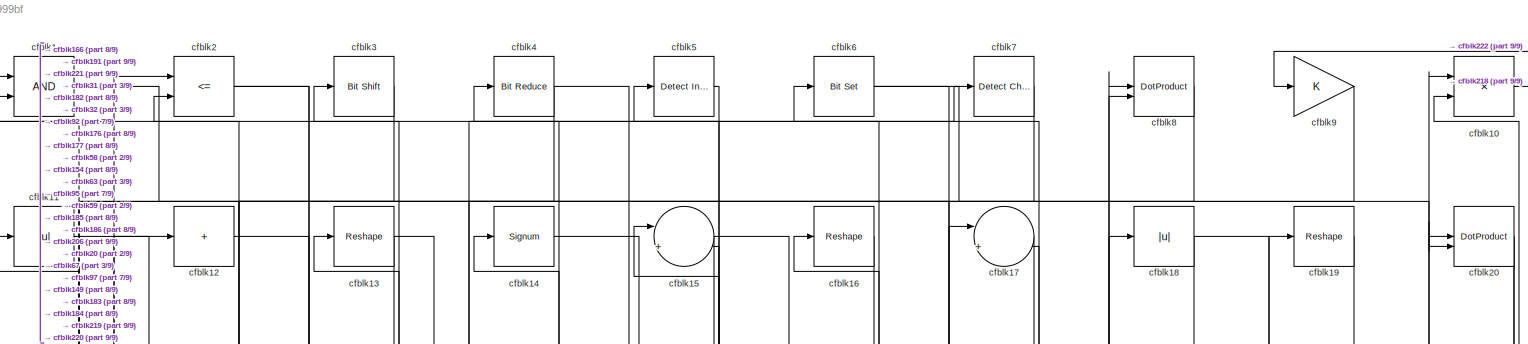
[diagram: root canvas - part 1/9, full width, top band]
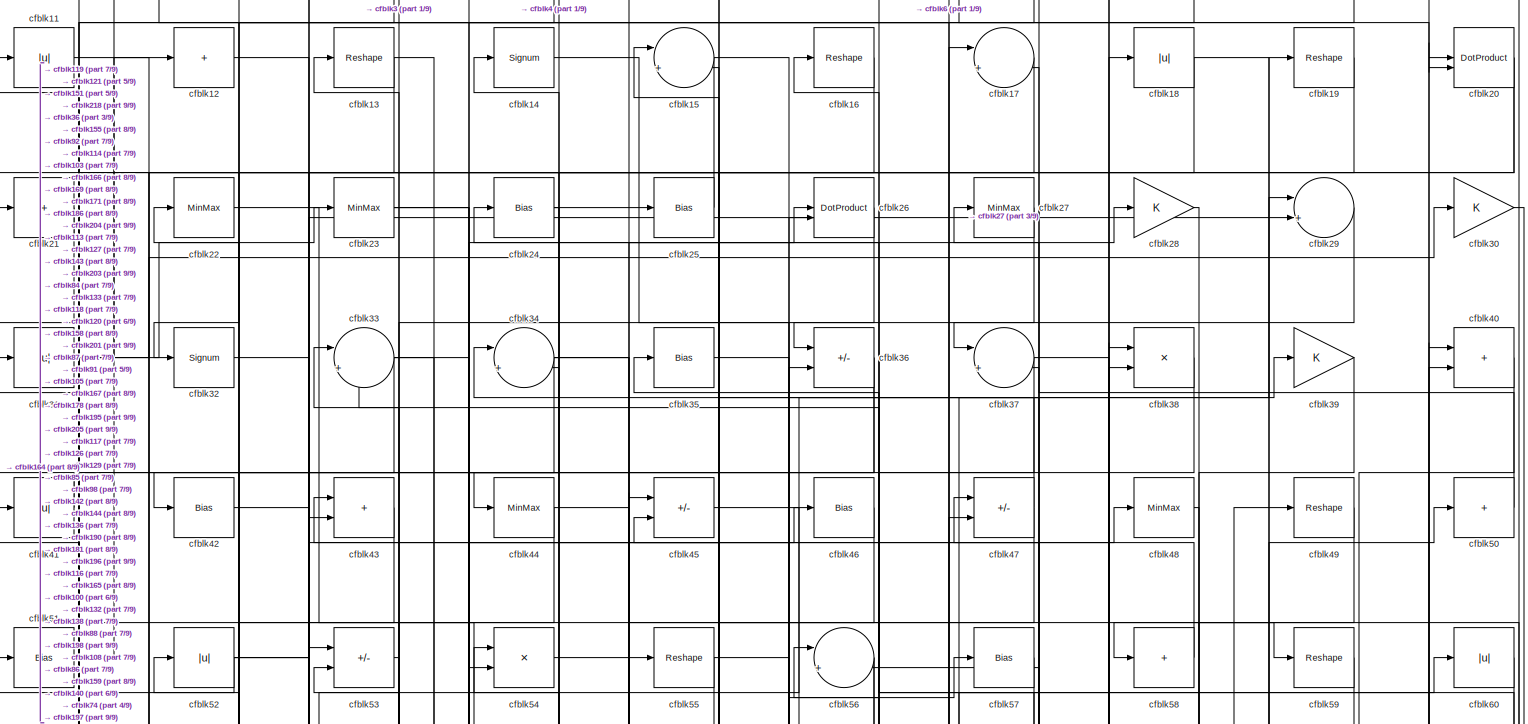
[diagram: root canvas - part 2/9, full width, top band]
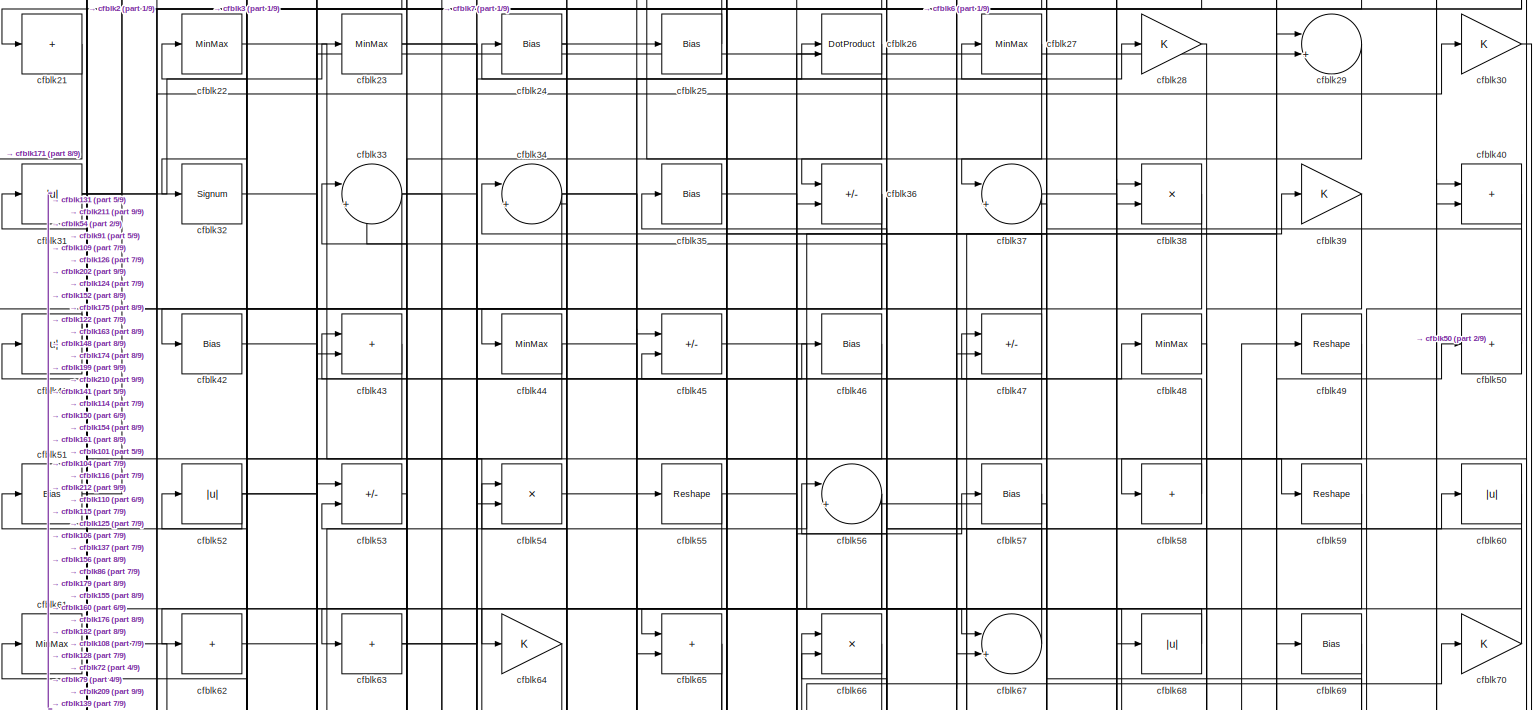
[diagram: root canvas - part 3/9, full width, top band]
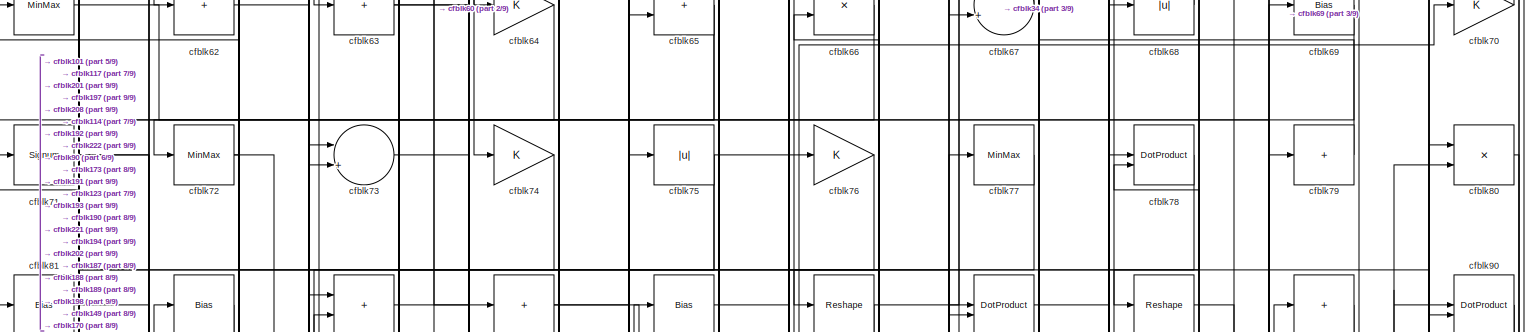
[diagram: root canvas - part 4/9, full width, top band]
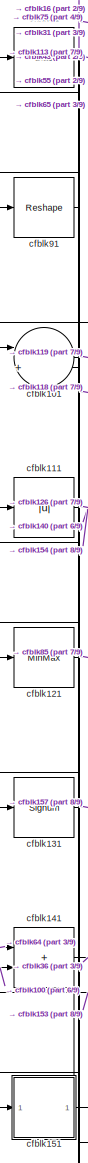
[diagram: root canvas - part 5/9, middle left region]
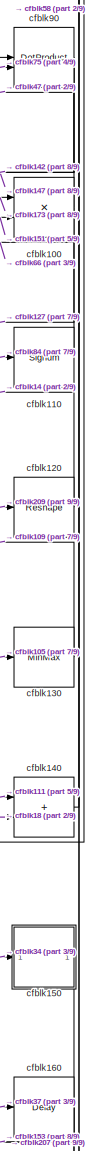
[diagram: root canvas - part 6/9, middle right region]
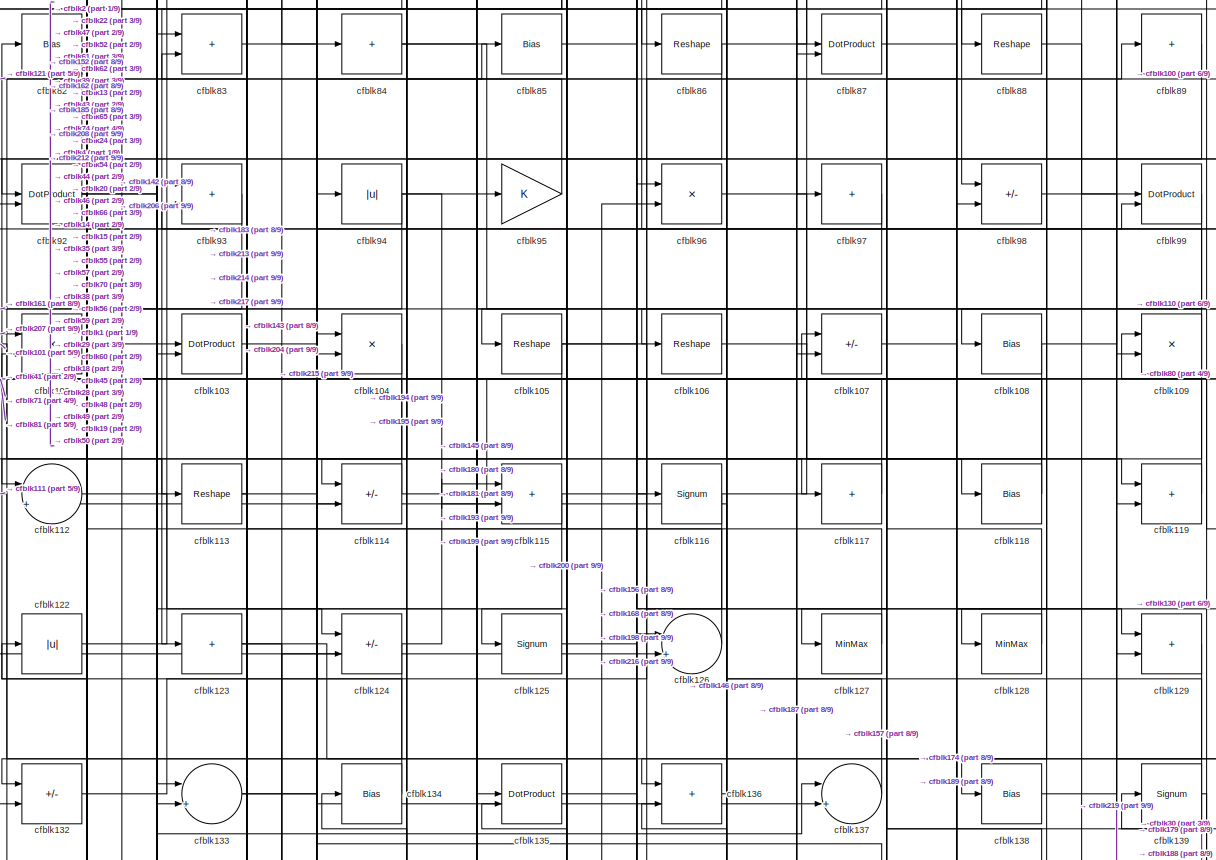
[diagram: root canvas - part 7/9, full width, middle band]
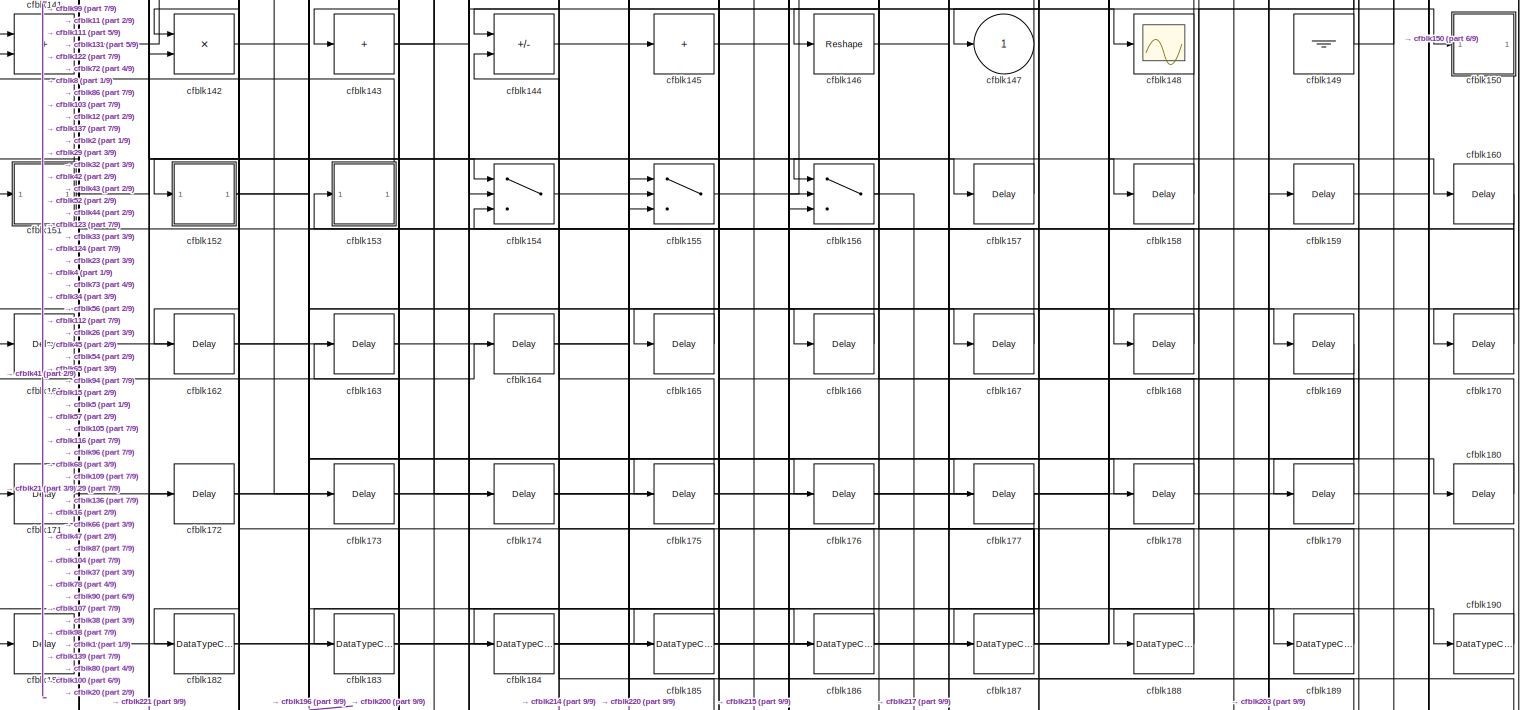
[diagram: root canvas - part 8/9, full width, bottom band]
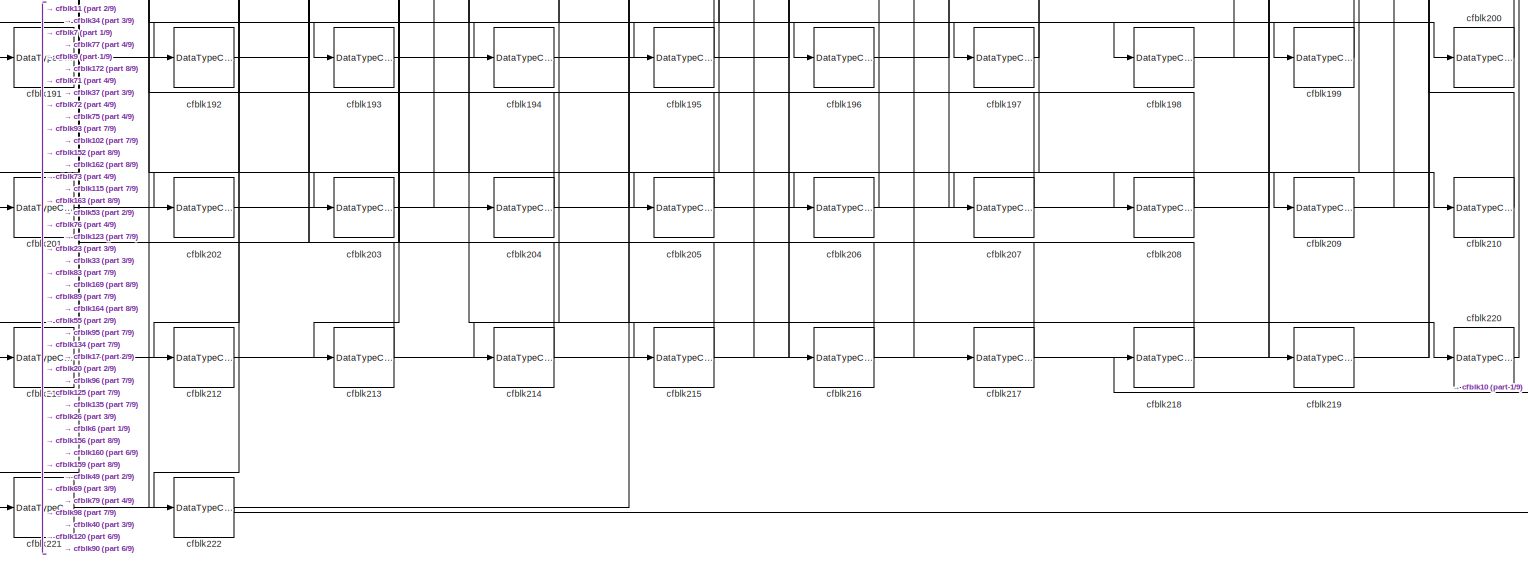
[diagram: root canvas - part 9/9, full width, bottom band]
MODEL slx_f61a17f999bf
KIND model
CONFIG AbsTol = auto
CONFIG EnableMultiTasking = off
CONFIG FixedStep = auto
CONFIG MaxStep = auto
CONFIG MinStep = auto
CONFIG RelTol = 1e-3
CONFIG SampleTimeConstraint = Unconstrained
CONFIG SolverName = VariableStepAuto
CONFIG StartTime = 0.0
CONFIG StopTime = 10.0
BLOCK [Logic] cfblk1
  AllPortsSameDT = off
  OutDataTypeStr = boolean
BLOCK [Product] cfblk10
  Inputs = */
  RndMeth = Zero
  SaturateOnIntegerOverflow = on
BLOCK [Product] cfblk100
  Inputs = */
  RndMeth = Zero
  SaturateOnIntegerOverflow = on
BLOCK [Sum] cfblk101
  Inputs = |++
BLOCK [Product] cfblk102
  Inputs = */
  RndMeth = Zero
  SaturateOnIntegerOverflow = on
BLOCK [DotProduct] cfblk103
  OutDataTypeStr = Inherit: Inherit via internal rule
BLOCK [Product] cfblk104
  Inputs = */
  RndMeth = Zero
  SaturateOnIntegerOverflow = on
BLOCK [Reshape] cfblk105
BLOCK [Reshape] cfblk106
BLOCK [Sum] cfblk107
  IconShape = rectangular
  Inputs = +-
BLOCK [Bias] cfblk108
  Bias = 0.0
  SaturateOnIntegerOverflow = off
BLOCK [Product] cfblk109
  Inputs = */
  RndMeth = Zero
  SaturateOnIntegerOverflow = on
BLOCK [Abs] cfblk11
  SaturateOnIntegerOverflow = off
BLOCK [Signum] cfblk110
BLOCK [Abs] cfblk111
  SaturateOnIntegerOverflow = off
BLOCK [Sum] cfblk112
  Inputs = |++
BLOCK [Reshape] cfblk113
BLOCK [Sum] cfblk114
  IconShape = rectangular
  Inputs = +-
BLOCK [Sum] cfblk115
  IconShape = rectangular
BLOCK [Signum] cfblk116
BLOCK [Sum] cfblk117
  IconShape = rectangular
  Inputs = +
BLOCK [Bias] cfblk118
  Bias = 0.0
  SaturateOnIntegerOverflow = off
BLOCK [Sum] cfblk119
  IconShape = rectangular
BLOCK [Sum] cfblk12
  IconShape = rectangular
  Inputs = +
BLOCK [Reshape] cfblk120
BLOCK [MinMax] cfblk121
BLOCK [Abs] cfblk122
  SaturateOnIntegerOverflow = off
BLOCK [Sum] cfblk123
  IconShape = rectangular
  Inputs = +
BLOCK [Sum] cfblk124
  IconShape = rectangular
  Inputs = +-
BLOCK [Signum] cfblk125
BLOCK [Sum] cfblk126
  Inputs = |++
BLOCK [MinMax] cfblk127
BLOCK [MinMax] cfblk128
BLOCK [Sum] cfblk129
  IconShape = rectangular
BLOCK [Reshape] cfblk13
BLOCK [MinMax] cfblk130
BLOCK [Signum] cfblk131
BLOCK [Sum] cfblk132
  IconShape = rectangular
  Inputs = +-
BLOCK [Sum] cfblk133
  Inputs = |++
BLOCK [Bias] cfblk134
  Bias = 0.0
  SaturateOnIntegerOverflow = off
BLOCK [DotProduct] cfblk135
  OutDataTypeStr = Inherit: Inherit via internal rule
BLOCK [Sum] cfblk136
  IconShape = rectangular
BLOCK [Sum] cfblk137
  Inputs = |++
BLOCK [Bias] cfblk138
  Bias = 0.0
  SaturateOnIntegerOverflow = off
BLOCK [Signum] cfblk139
BLOCK [Signum] cfblk14
BLOCK [Sum] cfblk140
  IconShape = rectangular
BLOCK [Sum] cfblk141
  IconShape = rectangular
BLOCK [Product] cfblk142
  Inputs = */
  RndMeth = Zero
  SaturateOnIntegerOverflow = on
BLOCK [Sum] cfblk143
  IconShape = rectangular
  Inputs = +
BLOCK [Sum] cfblk144
  IconShape = rectangular
  Inputs = +-
BLOCK [Sum] cfblk145
  IconShape = rectangular
  Inputs = +
BLOCK [Reshape] cfblk146
BLOCK [Outport] cfblk147
  VectorParamsAs1DForOutWhenUnconnected = off
BLOCK [Scope] cfblk148
  Floating = off
  NumInputPorts = 1
  ScopeSpecificationString = Simulink.scopes.TimeScopeBlockCfg('CurrentConfiguration', extmgr.ConfigurationSet(extmgr.Configuration('Core','General UI',true),extmgr.Configuration('Core','Source UI',true),extmgr.Configuration('Sources','WiredSimulink',true,'DataLoggingVariableName','ScopeData2','DataLoggingSaveFormat','Array','DataLoggingLimitDataPoints',true,'DataLoggingDecimation','1'),extmgr.Configuration('Visuals','Time Do...<+868ch>
BLOCK [Ground] cfblk149
BLOCK [Sum] cfblk15
  Inputs = |++
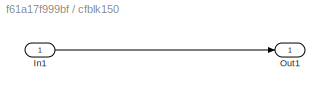
BLOCK [SubSystem] cfblk150
  LibrarySourceBlock = hdlsllib/Ports &\nSubsystems/Subsystem
BLOCK [Inport] cfblk150/In1
BLOCK [Outport] cfblk150/Out1
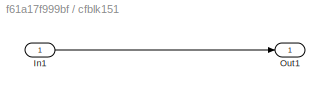
BLOCK [SubSystem] cfblk151
  LibrarySourceBlock = hdlsllib/Ports &\nSubsystems/Subsystem
BLOCK [Inport] cfblk151/In1
BLOCK [Outport] cfblk151/Out1
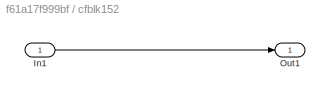
BLOCK [SubSystem] cfblk152
  LibrarySourceBlock = hdlsllib/Ports &\nSubsystems/Subsystem
BLOCK [Inport] cfblk152/In1
BLOCK [Outport] cfblk152/Out1
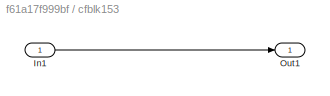
BLOCK [SubSystem] cfblk153
  LibrarySourceBlock = hdlsllib/Ports &\nSubsystems/Subsystem
BLOCK [Inport] cfblk153/In1
BLOCK [Outport] cfblk153/Out1
BLOCK [Switch] cfblk154
  InputSameDT = off
  SaturateOnIntegerOverflow = off
BLOCK [Switch] cfblk155
  InputSameDT = off
  SaturateOnIntegerOverflow = off
BLOCK [Switch] cfblk156
  InputSameDT = off
  SaturateOnIntegerOverflow = off
BLOCK [Delay] cfblk157
  InputPortMap = u0
  SampleTime = 1
BLOCK [Delay] cfblk158
  InputPortMap = u0
  SampleTime = 1
BLOCK [Delay] cfblk159
  InputPortMap = u0
  SampleTime = 1
BLOCK [Reshape] cfblk16
BLOCK [Delay] cfblk160
  InputPortMap = u0
  SampleTime = 1
BLOCK [Delay] cfblk161
  InputPortMap = u0
  SampleTime = 1
BLOCK [Delay] cfblk162
  InputPortMap = u0
  SampleTime = 1
BLOCK [Delay] cfblk163
  InputPortMap = u0
  SampleTime = 1
BLOCK [Delay] cfblk164
  InputPortMap = u0
  SampleTime = 1
BLOCK [Delay] cfblk165
  InputPortMap = u0
  SampleTime = 1
BLOCK [Delay] cfblk166
  InputPortMap = u0
  SampleTime = 1
BLOCK [Delay] cfblk167
  InputPortMap = u0
  SampleTime = 1
BLOCK [Delay] cfblk168
  InputPortMap = u0
  SampleTime = 1
BLOCK [Delay] cfblk169
  InputPortMap = u0
  SampleTime = 1
BLOCK [Sum] cfblk17
  Inputs = |++
BLOCK [Delay] cfblk170
  InputPortMap = u0
  SampleTime = 1
BLOCK [Delay] cfblk171
  InputPortMap = u0
  SampleTime = 1
BLOCK [Delay] cfblk172
  InputPortMap = u0
  SampleTime = 1
BLOCK [Delay] cfblk173
  InputPortMap = u0
  SampleTime = 1
BLOCK [Delay] cfblk174
  InputPortMap = u0
  SampleTime = 1
BLOCK [Delay] cfblk175
  InputPortMap = u0
  SampleTime = 1
BLOCK [Delay] cfblk176
  InputPortMap = u0
  SampleTime = 1
BLOCK [Delay] cfblk177
  InputPortMap = u0
  SampleTime = 1
BLOCK [Delay] cfblk178
  InputPortMap = u0
  SampleTime = 1
BLOCK [Delay] cfblk179
  InputPortMap = u0
  SampleTime = 1
BLOCK [Abs] cfblk18
  SaturateOnIntegerOverflow = off
BLOCK [Delay] cfblk180
  InputPortMap = u0
  SampleTime = 1
BLOCK [Delay] cfblk181
  InputPortMap = u0
  SampleTime = 1
BLOCK [DataTypeConversion] cfblk182
  OutDataTypeStr = uint8
  RndMeth = Floor
  SaturateOnIntegerOverflow = off
BLOCK [DataTypeConversion] cfblk183
  OutDataTypeStr = uint8
  RndMeth = Floor
  SaturateOnIntegerOverflow = off
BLOCK [DataTypeConversion] cfblk184
  OutDataTypeStr = uint8
  RndMeth = Floor
  SaturateOnIntegerOverflow = off
BLOCK [DataTypeConversion] cfblk185
  OutDataTypeStr = uint8
  RndMeth = Floor
  SaturateOnIntegerOverflow = off
BLOCK [DataTypeConversion] cfblk186
  OutDataTypeStr = uint8
  RndMeth = Floor
  SaturateOnIntegerOverflow = off
BLOCK [DataTypeConversion] cfblk187
  RndMeth = Floor
  SaturateOnIntegerOverflow = off
BLOCK [DataTypeConversion] cfblk188
  OutDataTypeStr = uint8
  RndMeth = Floor
  SaturateOnIntegerOverflow = off
BLOCK [DataTypeConversion] cfblk189
  OutDataTypeStr = uint8
  RndMeth = Floor
  SaturateOnIntegerOverflow = off
BLOCK [Reshape] cfblk19
BLOCK [DataTypeConversion] cfblk190
  OutDataTypeStr = uint8
  RndMeth = Floor
  SaturateOnIntegerOverflow = off
BLOCK [DataTypeConversion] cfblk191
  OutDataTypeStr = uint8
  RndMeth = Floor
  SaturateOnIntegerOverflow = off
BLOCK [DataTypeConversion] cfblk192
  OutDataTypeStr = uint8
  RndMeth = Floor
  SaturateOnIntegerOverflow = off
BLOCK [DataTypeConversion] cfblk193
  OutDataTypeStr = uint8
  RndMeth = Floor
  SaturateOnIntegerOverflow = off
BLOCK [DataTypeConversion] cfblk194
  OutDataTypeStr = uint8
  RndMeth = Floor
  SaturateOnIntegerOverflow = off
BLOCK [DataTypeConversion] cfblk195
  OutDataTypeStr = uint8
  RndMeth = Floor
  SaturateOnIntegerOverflow = off
BLOCK [DataTypeConversion] cfblk196
  OutDataTypeStr = uint8
  RndMeth = Floor
  SaturateOnIntegerOverflow = off
BLOCK [DataTypeConversion] cfblk197
  OutDataTypeStr = uint8
  RndMeth = Floor
  SaturateOnIntegerOverflow = off
BLOCK [DataTypeConversion] cfblk198
  RndMeth = Floor
  SaturateOnIntegerOverflow = off
BLOCK [DataTypeConversion] cfblk199
  OutDataTypeStr = uint8
  RndMeth = Floor
  SaturateOnIntegerOverflow = off
BLOCK [RelationalOperator] cfblk2
  InputSameDT = off
  Operator = <=
  OutDataTypeStr = boolean
BLOCK [DotProduct] cfblk20
  OutDataTypeStr = Inherit: Inherit via internal rule
BLOCK [DataTypeConversion] cfblk200
  OutDataTypeStr = uint8
  RndMeth = Floor
  SaturateOnIntegerOverflow = off
BLOCK [DataTypeConversion] cfblk201
  OutDataTypeStr = uint8
  RndMeth = Floor
  SaturateOnIntegerOverflow = off
BLOCK [DataTypeConversion] cfblk202
  OutDataTypeStr = uint8
  RndMeth = Floor
  SaturateOnIntegerOverflow = off
BLOCK [DataTypeConversion] cfblk203
  OutDataTypeStr = uint8
  RndMeth = Floor
  SaturateOnIntegerOverflow = off
BLOCK [DataTypeConversion] cfblk204
  OutDataTypeStr = uint8
  RndMeth = Floor
  SaturateOnIntegerOverflow = off
BLOCK [DataTypeConversion] cfblk205
  OutDataTypeStr = uint8
  RndMeth = Floor
  SaturateOnIntegerOverflow = off
BLOCK [DataTypeConversion] cfblk206
  OutDataTypeStr = uint8
  RndMeth = Floor
  SaturateOnIntegerOverflow = off
BLOCK [DataTypeConversion] cfblk207
  OutDataTypeStr = uint8
  RndMeth = Floor
  SaturateOnIntegerOverflow = off
BLOCK [DataTypeConversion] cfblk208
  OutDataTypeStr = uint8
  RndMeth = Floor
  SaturateOnIntegerOverflow = off
BLOCK [DataTypeConversion] cfblk209
  RndMeth = Floor
  SaturateOnIntegerOverflow = off
BLOCK [Sum] cfblk21
  IconShape = rectangular
  Inputs = +
BLOCK [DataTypeConversion] cfblk210
  OutDataTypeStr = uint8
  RndMeth = Floor
  SaturateOnIntegerOverflow = off
BLOCK [DataTypeConversion] cfblk211
  OutDataTypeStr = uint8
  RndMeth = Floor
  SaturateOnIntegerOverflow = off
BLOCK [DataTypeConversion] cfblk212
  RndMeth = Floor
  SaturateOnIntegerOverflow = off
BLOCK [DataTypeConversion] cfblk213
  OutDataTypeStr = uint8
  RndMeth = Floor
  SaturateOnIntegerOverflow = off
BLOCK [DataTypeConversion] cfblk214
  OutDataTypeStr = uint8
  RndMeth = Floor
  SaturateOnIntegerOverflow = off
BLOCK [DataTypeConversion] cfblk215
  RndMeth = Floor
  SaturateOnIntegerOverflow = off
BLOCK [DataTypeConversion] cfblk216
  OutDataTypeStr = uint8
  RndMeth = Floor
  SaturateOnIntegerOverflow = off
BLOCK [DataTypeConversion] cfblk217
  OutDataTypeStr = uint8
  RndMeth = Floor
  SaturateOnIntegerOverflow = off
BLOCK [DataTypeConversion] cfblk218
  OutDataTypeStr = uint8
  RndMeth = Floor
  SaturateOnIntegerOverflow = off
BLOCK [DataTypeConversion] cfblk219
  OutDataTypeStr = uint8
  RndMeth = Floor
  SaturateOnIntegerOverflow = off
BLOCK [MinMax] cfblk22
BLOCK [DataTypeConversion] cfblk220
  OutDataTypeStr = uint8
  RndMeth = Floor
  SaturateOnIntegerOverflow = off
BLOCK [DataTypeConversion] cfblk221
  RndMeth = Floor
  SaturateOnIntegerOverflow = off
BLOCK [DataTypeConversion] cfblk222
  OutDataTypeStr = uint8
  RndMeth = Floor
  SaturateOnIntegerOverflow = off
BLOCK [MinMax] cfblk23
BLOCK [Bias] cfblk24
  Bias = 0.0
  SaturateOnIntegerOverflow = off
BLOCK [Bias] cfblk25
  Bias = 0.0
  SaturateOnIntegerOverflow = off
BLOCK [DotProduct] cfblk26
  OutDataTypeStr = Inherit: Inherit via internal rule
BLOCK [MinMax] cfblk27
BLOCK [Gain] cfblk28
BLOCK [Sum] cfblk29
  Inputs = |++
BLOCK [Reference] cfblk3  REF=hdlsllib/Logic and Bit
Operations/Bit Shift
  SourceBlock = hdlsllib/Logic and Bit\nOperations/Bit Shift
  SourceType = Bit Shift
BLOCK [Gain] cfblk30
BLOCK [Abs] cfblk31
  SaturateOnIntegerOverflow = off
BLOCK [Signum] cfblk32
BLOCK [Sum] cfblk33
  Inputs = |++
BLOCK [Sum] cfblk34
  Inputs = |++
BLOCK [Bias] cfblk35
  Bias = 0.0
  SaturateOnIntegerOverflow = off
BLOCK [Sum] cfblk36
  IconShape = rectangular
  Inputs = +-
BLOCK [Sum] cfblk37
  Inputs = |++
BLOCK [Product] cfblk38
  Inputs = */
  RndMeth = Zero
  SaturateOnIntegerOverflow = on
BLOCK [Gain] cfblk39
BLOCK [Reference] cfblk4  REF=hdlsllib/Logic and Bit
Operations/Bit Reduce
  SourceBlock = hdlsllib/Logic and Bit\nOperations/Bit Reduce
  SourceType = Bit Reduce
BLOCK [Sum] cfblk40
  IconShape = rectangular
BLOCK [Abs] cfblk41
  SaturateOnIntegerOverflow = off
BLOCK [Bias] cfblk42
  Bias = 0.0
  SaturateOnIntegerOverflow = off
BLOCK [Sum] cfblk43
  IconShape = rectangular
BLOCK [MinMax] cfblk44
BLOCK [Sum] cfblk45
  IconShape = rectangular
  Inputs = +-
BLOCK [Bias] cfblk46
  Bias = 0.0
  SaturateOnIntegerOverflow = off
BLOCK [Sum] cfblk47
  IconShape = rectangular
  Inputs = +-
BLOCK [MinMax] cfblk48
BLOCK [Reshape] cfblk49
BLOCK [Reference] cfblk5  REF=simulink/Logic and Bit
Operations/Detect
Increase
  LibrarySourceBlock = hdlsllib/Logic and Bit\nOperations/Detect\nIncrease
  SourceBlock = simulink/Logic and Bit\nOperations/Detect\nIncrease
  SourceType = Detect Increase
BLOCK [Sum] cfblk50
  IconShape = rectangular
  Inputs = +
BLOCK [Bias] cfblk51
  Bias = 0.0
  SaturateOnIntegerOverflow = off
BLOCK [Abs] cfblk52
  SaturateOnIntegerOverflow = off
BLOCK [Sum] cfblk53
  IconShape = rectangular
  Inputs = +-
BLOCK [Product] cfblk54
  Inputs = */
  RndMeth = Zero
  SaturateOnIntegerOverflow = on
BLOCK [Reshape] cfblk55
BLOCK [Sum] cfblk56
  Inputs = |++
BLOCK [Bias] cfblk57
  Bias = 0.0
  SaturateOnIntegerOverflow = off
BLOCK [Sum] cfblk58
  IconShape = rectangular
  Inputs = +
BLOCK [Reshape] cfblk59
BLOCK [Reference] cfblk6  REF=simulink/Logic and Bit
Operations/Bit Set
  LibrarySourceBlock = hdlsllib/Logic and Bit\nOperations/Bit Set
  SourceBlock = simulink/Logic and Bit\nOperations/Bit Set
  SourceType = Bit Set
BLOCK [Abs] cfblk60
  SaturateOnIntegerOverflow = off
BLOCK [MinMax] cfblk61
BLOCK [Sum] cfblk62
  IconShape = rectangular
  Inputs = +
BLOCK [Sum] cfblk63
  IconShape = rectangular
  Inputs = +
BLOCK [Gain] cfblk64
BLOCK [Sum] cfblk65
  IconShape = rectangular
BLOCK [Product] cfblk66
  Inputs = */
  RndMeth = Zero
  SaturateOnIntegerOverflow = on
BLOCK [Sum] cfblk67
  Inputs = |++
BLOCK [Abs] cfblk68
  SaturateOnIntegerOverflow = off
BLOCK [Bias] cfblk69
  Bias = 0.0
  SaturateOnIntegerOverflow = off
BLOCK [Reference] cfblk7  REF=simulink/Logic and Bit
Operations/Detect
Change
  LibrarySourceBlock = hdlsllib/Logic and Bit\nOperations/Detect\nChange
  SourceBlock = simulink/Logic and Bit\nOperations/Detect\nChange
  SourceType = Detect Change
BLOCK [Gain] cfblk70
BLOCK [Signum] cfblk71
BLOCK [MinMax] cfblk72
BLOCK [Sum] cfblk73
  Inputs = |++
BLOCK [Gain] cfblk74
BLOCK [Abs] cfblk75
  SaturateOnIntegerOverflow = off
BLOCK [Gain] cfblk76
BLOCK [MinMax] cfblk77
BLOCK [DotProduct] cfblk78
  OutDataTypeStr = Inherit: Inherit via internal rule
BLOCK [Sum] cfblk79
  IconShape = rectangular
  Inputs = +
BLOCK [DotProduct] cfblk8
  OutDataTypeStr = Inherit: Inherit via internal rule
BLOCK [Product] cfblk80
  Inputs = */
  RndMeth = Zero
  SaturateOnIntegerOverflow = on
BLOCK [Bias] cfblk81
  Bias = 0.0
  SaturateOnIntegerOverflow = off
BLOCK [Bias] cfblk82
  Bias = 0.0
  SaturateOnIntegerOverflow = off
BLOCK [Sum] cfblk83
  IconShape = rectangular
BLOCK [Sum] cfblk84
  IconShape = rectangular
  Inputs = +
BLOCK [Bias] cfblk85
  Bias = 0.0
  SaturateOnIntegerOverflow = off
BLOCK [Reshape] cfblk86
BLOCK [DotProduct] cfblk87
  OutDataTypeStr = Inherit: Inherit via internal rule
BLOCK [Reshape] cfblk88
BLOCK [Sum] cfblk89
  IconShape = rectangular
  Inputs = +
BLOCK [Gain] cfblk9
BLOCK [DotProduct] cfblk90
  OutDataTypeStr = Inherit: Inherit via internal rule
BLOCK [Reshape] cfblk91
BLOCK [DotProduct] cfblk92
  OutDataTypeStr = Inherit: Inherit via internal rule
BLOCK [Sum] cfblk93
  IconShape = rectangular
BLOCK [Abs] cfblk94
  SaturateOnIntegerOverflow = off
BLOCK [Gain] cfblk95
BLOCK [Product] cfblk96
  Inputs = */
  RndMeth = Zero
  SaturateOnIntegerOverflow = on
BLOCK [Sum] cfblk97
  IconShape = rectangular
  Inputs = +
BLOCK [Sum] cfblk98
  IconShape = rectangular
  Inputs = +-
BLOCK [DotProduct] cfblk99
  OutDataTypeStr = Inherit: Inherit via internal rule
NET cfblk100:1 -> cfblk127:1, cfblk47:1
LINE cfblk101:1 -> cfblk119:2
LINE cfblk102:1 -> cfblk206:1
LINE cfblk103:1 -> cfblk89:1
LINE cfblk104:1 -> cfblk183:1
NET cfblk105:1 -> cfblk112:1, cfblk130:1, cfblk168:1
LINE cfblk106:1 -> cfblk118:1
LINE cfblk107:1 -> cfblk189:1
NET cfblk108:1 -> cfblk114:2, cfblk50:1
NET cfblk109:1 -> cfblk156:1, cfblk22:1
LINE cfblk10:1 -> cfblk218:1
LINE cfblk110:1 -> cfblk66:1
NET cfblk111:1 -> cfblk126:2, cfblk140:1, cfblk154:1
LINE cfblk112:1 -> cfblk145:1
NET cfblk113:1 -> cfblk43:1, cfblk99:2
NET cfblk114:1 -> cfblk52:1, cfblk80:1
NET cfblk115:1 -> cfblk213:1, cfblk70:1
NET cfblk116:1 -> cfblk156:2, cfblk60:1
LINE cfblk117:1 -> cfblk71:1
NET cfblk118:1 -> cfblk54:1, cfblk81:1
LINE cfblk119:1 -> cfblk41:1
LINE cfblk11:1 -> cfblk155:2
LINE cfblk120:1 -> cfblk14:1
LINE cfblk121:1 -> cfblk85:1
LINE cfblk122:1 -> cfblk39:1
NET cfblk123:1 -> cfblk156:3, cfblk204:1
NET cfblk124:1 -> cfblk115:1, cfblk162:1
LINE cfblk125:1 -> cfblk216:1
LINE cfblk126:1 -> cfblk61:1
LINE cfblk127:1 -> cfblk13:1
LINE cfblk128:1 -> cfblk107:1
LINE cfblk129:1 -> cfblk146:1
LINE cfblk12:1 -> cfblk166:1
LINE cfblk130:1 -> cfblk109:1
LINE cfblk131:1 -> cfblk157:1
LINE cfblk132:1 -> cfblk18:1
NET cfblk133:1 -> cfblk137:2, cfblk48:1
LINE cfblk134:1 -> cfblk82:1
LINE cfblk135:1 -> cfblk198:1
LINE cfblk136:1 -> cfblk56:1
LINE cfblk137:1 -> cfblk24:1
LINE cfblk138:1 -> cfblk19:1
NET cfblk139:1 -> cfblk112:2, cfblk179:1, cfblk188:1
NET cfblk13:1 -> cfblk84:1, cfblk92:2
LINE cfblk140:1 -> cfblk58:1
LINE cfblk141:1 -> cfblk36:2
LINE cfblk142:1 -> cfblk137:1
NET cfblk143:1 -> cfblk124:2, cfblk94:1
LINE cfblk144:1 -> cfblk45:1
LINE cfblk145:1 -> cfblk167:1
LINE cfblk146:1 -> cfblk178:1
NET cfblk149:1 -> cfblk1:1, cfblk80:2
LINE cfblk14:1 -> cfblk126:1
LINE cfblk150/In1:1 -> cfblk150/Out1:1
LINE cfblk150:1 -> cfblk153:1
LINE cfblk151/In1:1 -> cfblk151/Out1:1
NET cfblk151:1 -> cfblk100:2, cfblk141:2
LINE cfblk152/In1:1 -> cfblk152/Out1:1
NET cfblk152:1 -> cfblk196:1, cfblk29:2
LINE cfblk153/In1:1 -> cfblk153/Out1:1
LINE cfblk153:1 -> cfblk111:1
LINE cfblk154:1 -> cfblk26:1
LINE cfblk155:1 -> cfblk68:1
NET cfblk156:1 -> cfblk217:1, cfblk66:2
LINE cfblk157:1 -> cfblk104:1
LINE cfblk158:1 -> cfblk56:2
LINE cfblk159:1 -> cfblk20:1
NET cfblk15:1 -> cfblk117:1, cfblk132:2
LINE cfblk160:1 -> cfblk207:1
LINE cfblk161:1 -> cfblk65:2
LINE cfblk162:1 -> cfblk200:1
LINE cfblk163:1 -> cfblk33:1
LINE cfblk164:1 -> cfblk220:1
LINE cfblk165:1 -> cfblk155:1
LINE cfblk166:1 -> cfblk1:2
LINE cfblk167:1 -> cfblk45:2
LINE cfblk168:1 -> cfblk103:1
LINE cfblk169:1 -> cfblk214:1
LINE cfblk16:1 -> cfblk121:1
LINE cfblk170:1 -> cfblk144:2
LINE cfblk171:1 -> cfblk43:2
LINE cfblk172:1 -> cfblk155:3
LINE cfblk173:1 -> cfblk100:1
LINE cfblk174:1 -> cfblk98:2
LINE cfblk175:1 -> cfblk34:2
LINE cfblk176:1 -> cfblk38:2
LINE cfblk177:1 -> cfblk184:1
LINE cfblk178:1 -> cfblk15:2
LINE cfblk179:1 -> cfblk37:2
LINE cfblk17:1 -> cfblk195:1
LINE cfblk180:1 -> cfblk136:2
LINE cfblk181:1 -> cfblk47:2
LINE cfblk182:1 -> cfblk38:1
LINE cfblk183:1 -> cfblk8:1
LINE cfblk184:1 -> cfblk8:2
LINE cfblk185:1 -> cfblk122:1
LINE cfblk186:1 -> cfblk5:1
NET cfblk187:1 -> cfblk154:3, cfblk87:1, cfblk96:1
LINE cfblk188:1 -> cfblk78:1
LINE cfblk189:1 -> cfblk78:2
NET cfblk18:1 -> cfblk140:2, cfblk44:1
LINE cfblk190:1 -> cfblk16:1
LINE cfblk191:1 -> cfblk73:1
LINE cfblk192:1 -> cfblk73:2
LINE cfblk193:1 -> cfblk95:1
LINE cfblk194:1 -> cfblk76:1
LINE cfblk195:1 -> cfblk134:1
LINE cfblk196:1 -> cfblk17:1
LINE cfblk197:1 -> cfblk17:2
NET cfblk198:1 -> cfblk49:1, cfblk79:1
LINE cfblk199:1 -> cfblk135:1
LINE cfblk19:1 -> cfblk42:1
LINE cfblk1:1 -> cfblk97:1
LINE cfblk200:1 -> cfblk135:2
LINE cfblk201:1 -> cfblk55:1
LINE cfblk202:1 -> cfblk77:1
LINE cfblk203:1 -> cfblk159:1
LINE cfblk204:1 -> cfblk53:1
LINE cfblk205:1 -> cfblk53:2
LINE cfblk206:1 -> cfblk6:1
LINE cfblk207:1 -> cfblk102:1
LINE cfblk208:1 -> cfblk102:2
NET cfblk209:1 -> cfblk120:1, cfblk90:1
NET cfblk20:1 -> cfblk103:2, cfblk205:1
LINE cfblk210:1 -> cfblk40:1
LINE cfblk211:1 -> cfblk40:2
NET cfblk212:1 -> cfblk26:2, cfblk69:1
LINE cfblk213:1 -> cfblk93:1
LINE cfblk214:1 -> cfblk93:2
NET cfblk215:1 -> cfblk163:1, cfblk96:2
LINE cfblk216:1 -> cfblk83:1
LINE cfblk217:1 -> cfblk83:2
LINE cfblk218:1 -> cfblk11:1
LINE cfblk219:1 -> cfblk10:1
LINE cfblk21:1 -> cfblk171:1
LINE cfblk220:1 -> cfblk10:2
NET cfblk221:1 -> cfblk172:1, cfblk75:1
LINE cfblk222:1 -> cfblk9:1
LINE cfblk22:1 -> cfblk64:1
NET cfblk23:1 -> cfblk148:1, cfblk199:1
NET cfblk24:1 -> cfblk114:1, cfblk25:1
LINE cfblk25:1 -> cfblk21:1
LINE cfblk26:1 -> cfblk36:1
LINE cfblk27:1 -> cfblk63:1
LINE cfblk28:1 -> cfblk128:1
LINE cfblk29:1 -> cfblk37:1
NET cfblk2:1 -> cfblk176:1, cfblk177:1
LINE cfblk30:1 -> cfblk139:1
NET cfblk31:1 -> cfblk23:1, cfblk2:1, cfblk30:1
LINE cfblk32:1 -> cfblk175:1
NET cfblk33:1 -> cfblk174:1, cfblk210:1, cfblk62:1
NET cfblk34:1 -> cfblk150:1, cfblk211:1, cfblk67:1
LINE cfblk35:1 -> cfblk116:1
NET cfblk36:1 -> cfblk131:1, cfblk54:2
NET cfblk37:1 -> cfblk160:1, cfblk202:1
LINE cfblk38:1 -> cfblk106:1
LINE cfblk39:1 -> cfblk108:1
LINE cfblk3:1 -> cfblk32:1
LINE cfblk40:1 -> cfblk209:1
LINE cfblk41:1 -> cfblk164:1
LINE cfblk42:1 -> cfblk186:1
LINE cfblk43:1 -> cfblk151:1
NET cfblk44:1 -> cfblk143:1, cfblk87:2
LINE cfblk45:1 -> cfblk98:1
LINE cfblk46:1 -> cfblk105:1
NET cfblk47:1 -> cfblk132:1, cfblk15:1
LINE cfblk48:1 -> cfblk138:1
LINE cfblk49:1 -> cfblk88:1
NET cfblk4:1 -> cfblk154:2, cfblk59:1
LINE cfblk50:1 -> cfblk27:1
LINE cfblk51:1 -> cfblk12:1
NET cfblk52:1 -> cfblk169:1, cfblk46:1, cfblk51:1
LINE cfblk53:1 -> cfblk203:1
LINE cfblk54:1 -> cfblk158:1
NET cfblk55:1 -> cfblk129:2, cfblk91:1
NET cfblk56:1 -> cfblk142:1, cfblk144:1
LINE cfblk57:1 -> cfblk165:1
LINE cfblk58:1 -> cfblk3:1
LINE cfblk59:1 -> cfblk86:1
LINE cfblk5:1 -> cfblk185:1
LINE cfblk60:1 -> cfblk74:1
LINE cfblk61:1 -> cfblk109:2
LINE cfblk62:1 -> cfblk124:1
NET cfblk63:1 -> cfblk28:1, cfblk7:1
LINE cfblk64:1 -> cfblk141:1
NET cfblk65:1 -> cfblk101:2, cfblk104:2
LINE cfblk66:1 -> cfblk125:1
LINE cfblk67:1 -> cfblk33:2
LINE cfblk68:1 -> cfblk65:1
LINE cfblk69:1 -> cfblk72:1
NET cfblk6:1 -> cfblk20:2, cfblk67:2
LINE cfblk70:1 -> cfblk35:1
NET cfblk71:1 -> cfblk197:1, cfblk208:1
NET cfblk72:1 -> cfblk173:1, cfblk222:1
LINE cfblk73:1 -> cfblk190:1
LINE cfblk74:1 -> cfblk123:1
NET cfblk75:1 -> cfblk101:1, cfblk192:1, cfblk90:2
LINE cfblk76:1 -> cfblk193:1
LINE cfblk77:1 -> cfblk201:1
LINE cfblk78:1 -> cfblk187:1
LINE cfblk79:1 -> cfblk34:1
LINE cfblk7:1 -> cfblk191:1
LINE cfblk80:1 -> cfblk170:1
LINE cfblk81:1 -> cfblk113:1
LINE cfblk82:1 -> cfblk92:1
LINE cfblk83:1 -> cfblk215:1
NET cfblk84:1 -> cfblk107:2, cfblk110:1
LINE cfblk85:1 -> cfblk57:1
NET cfblk86:1 -> cfblk152:1, cfblk29:1
LINE cfblk87:1 -> cfblk129:1
LINE cfblk88:1 -> cfblk99:1
LINE cfblk89:1 -> cfblk194:1
LINE cfblk8:1 -> cfblk182:1
NET cfblk90:1 -> cfblk142:2, cfblk147:1
LINE cfblk91:1 -> cfblk31:1
NET cfblk92:1 -> cfblk133:1, cfblk133:2, cfblk2:2
LINE cfblk93:1 -> cfblk212:1
NET cfblk94:1 -> cfblk115:2, cfblk180:1, cfblk181:1
LINE cfblk95:1 -> cfblk4:1
LINE cfblk96:1 -> cfblk119:1
LINE cfblk97:1 -> cfblk136:1
LINE cfblk98:1 -> cfblk219:1
LINE cfblk99:1 -> cfblk161:1
LINE cfblk9:1 -> cfblk221:1
note: NET lines group one-source signal fan-out (src -> all destinations, sorted); 1:1 wires keep LINE
